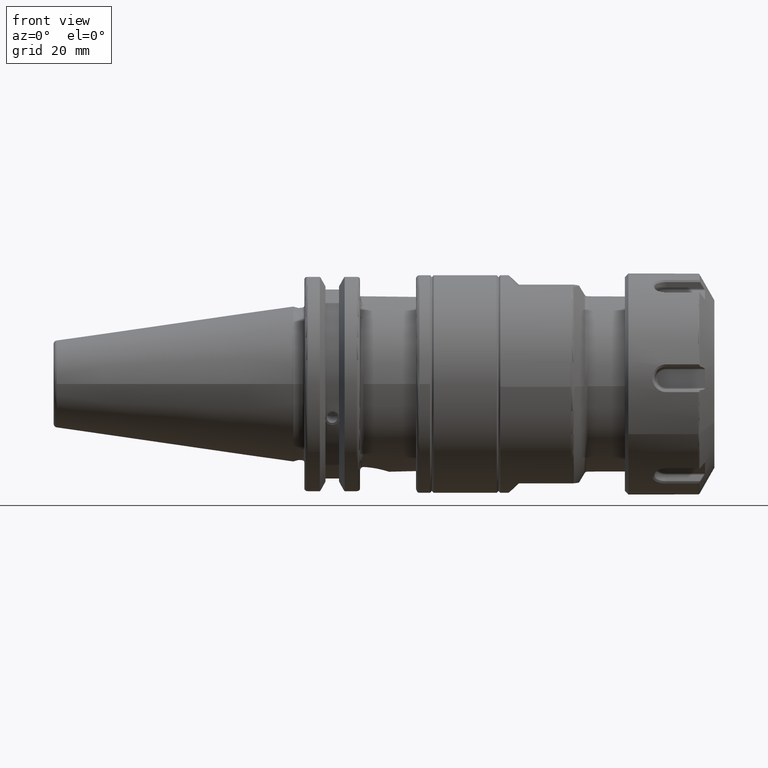
[diagram: clean part render]
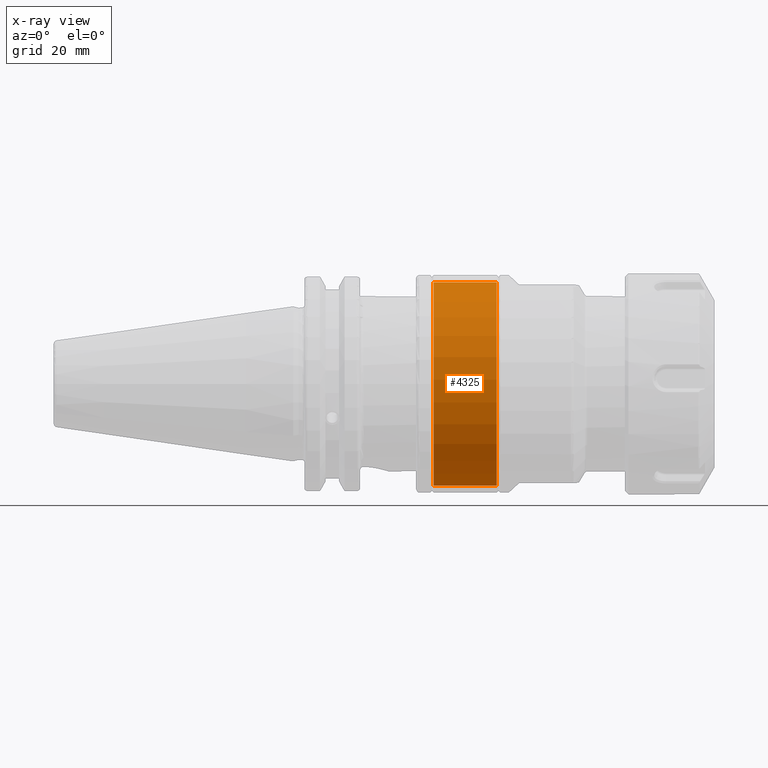
[diagram: x-ray — body ghosted, one internal face saturated and labeled with its STEP entity id]
A machine part, front view, then the same camera in x-ray: the body is ghosted and one INTERNAL B-rep face — a face not visible from any outside direction — is saturated and labeled: STEP entity #4325.
In plain terms, the highlighted cylindrical surface (bore or boss wall) has radius 29 mm, axis along (1, 0, 0).
Its self-contained STEP definition (entity closure, byte-faithful):
#518=FACE_OUTER_BOUND('',#807,.T.);
#807=EDGE_LOOP('',(#3424,#3425,#3426,#3427,#3428,#3429));
#1075=CIRCLE('',#4832,29.);
#1076=CIRCLE('',#4833,29.);
#1079=CIRCLE('',#4838,29.);
#1080=CIRCLE('',#4839,29.);
#1327=LINE('',#7440,#1568);
#1568=VECTOR('',#5712,29.);
#1993=VERTEX_POINT('',#7428);
#1994=VERTEX_POINT('',#7429);
#1997=VERTEX_POINT('',#7439);
#1998=VERTEX_POINT('',#7441);
#2502=EDGE_CURVE('',#1993,#1994,#1075,.T.);
#2503=EDGE_CURVE('',#1994,#1993,#1076,.T.);
#2507=EDGE_CURVE('',#1994,#1997,#1327,.T.);
#2508=EDGE_CURVE('',#1998,#1997,#1079,.T.);
#2509=EDGE_CURVE('',#1997,#1998,#1080,.T.);
#3424=ORIENTED_EDGE('',*,*,#2502,.F.);
#3425=ORIENTED_EDGE('',*,*,#2503,.F.);
#3426=ORIENTED_EDGE('',*,*,#2507,.T.);
#3427=ORIENTED_EDGE('',*,*,#2508,.F.);
#3428=ORIENTED_EDGE('',*,*,#2509,.F.);
#3429=ORIENTED_EDGE('',*,*,#2507,.F.);
#4175=CYLINDRICAL_SURFACE('',#4837,29.);
#4325=ADVANCED_FACE('',(#518),#4175,.F.);
#4832=AXIS2_PLACEMENT_3D('',#7430,#5699,#5700);
#4833=AXIS2_PLACEMENT_3D('',#7431,#5701,#5702);
#4837=AXIS2_PLACEMENT_3D('',#7438,#5710,#5711);
#4838=AXIS2_PLACEMENT_3D('',#7442,#5713,#5714);
#4839=AXIS2_PLACEMENT_3D('',#7443,#5715,#5716);
#5699=DIRECTION('center_axis',(-1.,0.,0.));
#5700=DIRECTION('ref_axis',(0.,-1.,0.));
#5701=DIRECTION('center_axis',(-1.,0.,0.));
#5702=DIRECTION('ref_axis',(0.,-1.,0.));
#5710=DIRECTION('center_axis',(1.,0.,0.));
#5711=DIRECTION('ref_axis',(0.,1.,0.));
#5712=DIRECTION('',(-1.,0.,0.));
#5713=DIRECTION('center_axis',(1.,0.,0.));
#5714=DIRECTION('ref_axis',(0.,-1.,0.));
#5715=DIRECTION('center_axis',(1.,0.,0.));
#5716=DIRECTION('ref_axis',(0.,-1.,0.));
#7428=CARTESIAN_POINT('',(18.5,29.,-3.55147571752732E-15));
#7429=CARTESIAN_POINT('',(18.5,-29.,-3.55147571752732E-15));
#7430=CARTESIAN_POINT('Origin',(18.5,0.,0.));
#7431=CARTESIAN_POINT('Origin',(18.5,0.,0.));
#7438=CARTESIAN_POINT('Origin',(9.5,0.,0.));
#7439=CARTESIAN_POINT('',(0.499999999999997,-29.,-3.55147571752732E-15));
#7440=CARTESIAN_POINT('',(9.5,-29.,-3.55147571752732E-15));
#7441=CARTESIAN_POINT('',(0.499999999999996,29.,3.55147571752732E-15));
#7442=CARTESIAN_POINT('Origin',(0.499999999999996,0.,0.));
#7443=CARTESIAN_POINT('Origin',(0.499999999999996,0.,0.));